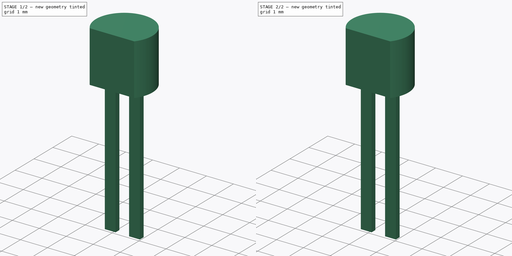
[diagram: build sequence overview — one tinted view per stage of 2, left to right]
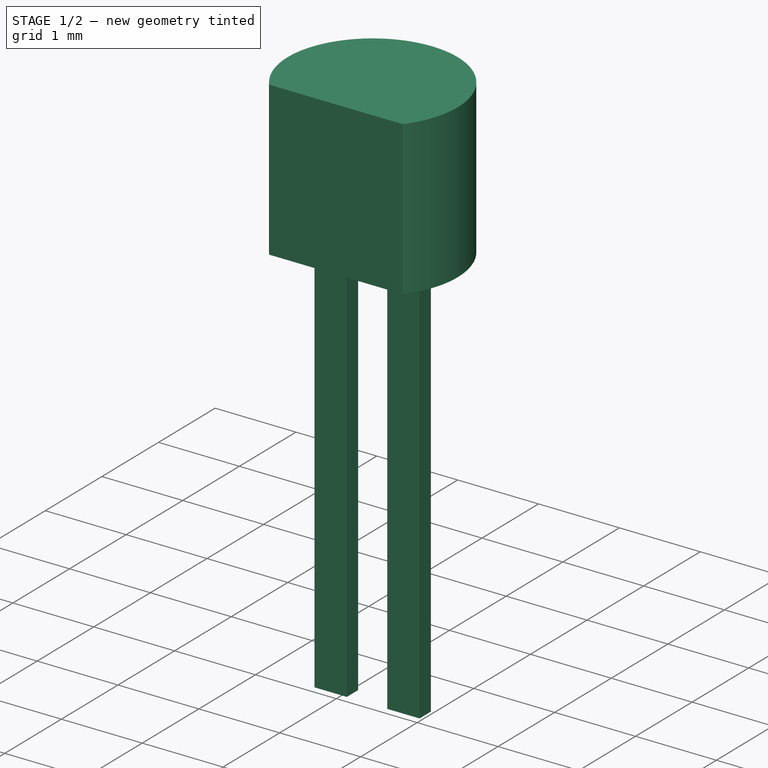
[diagram: stage 1 of 2 — iso view after this stage's code; geometry added in this stage tinted green]
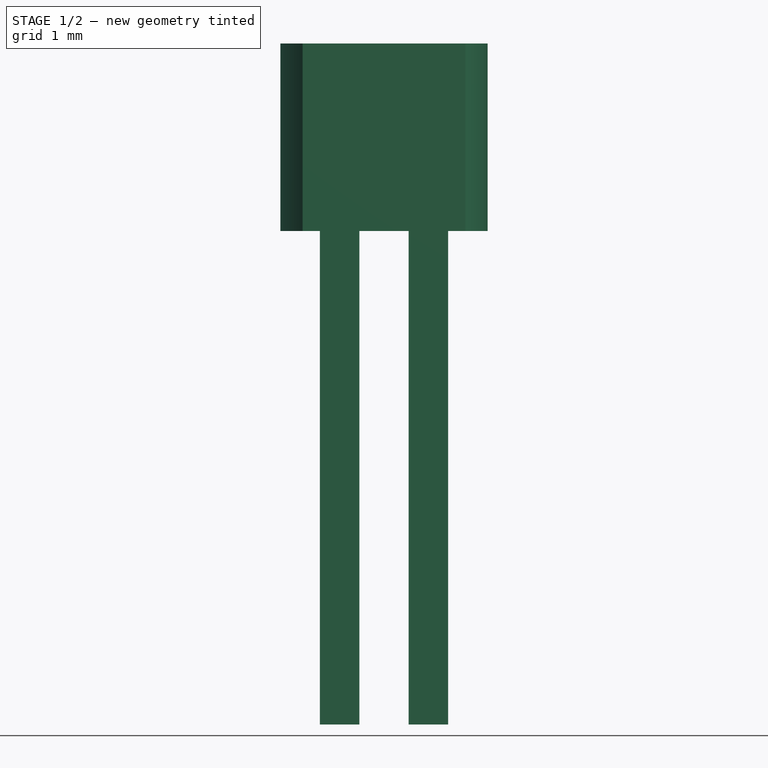
[diagram: stage 1 of 2 — front view after this stage's code; geometry added in this stage tinted green]
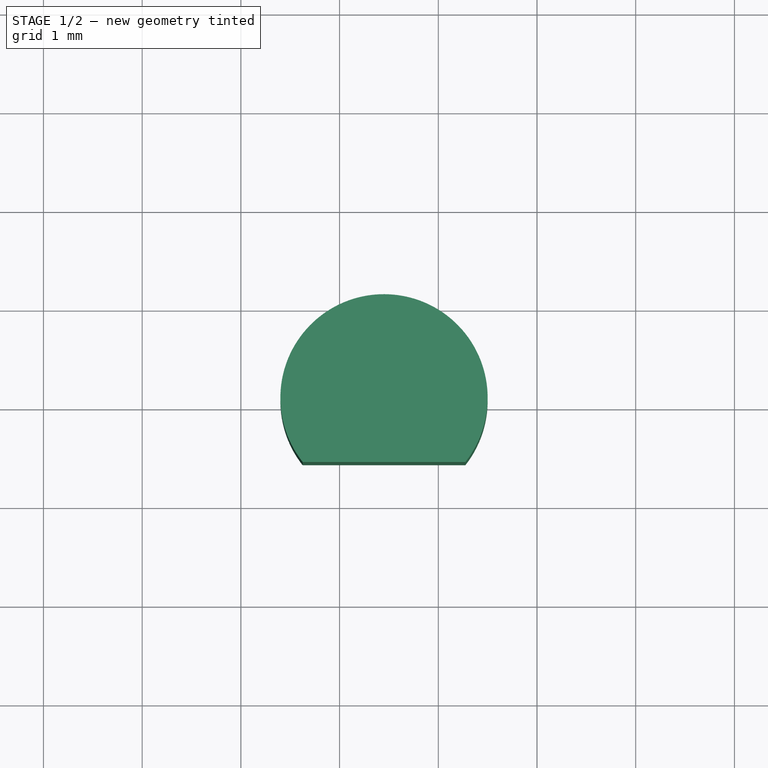
[diagram: stage 1 of 2 — top view after this stage's code; geometry added in this stage tinted green]
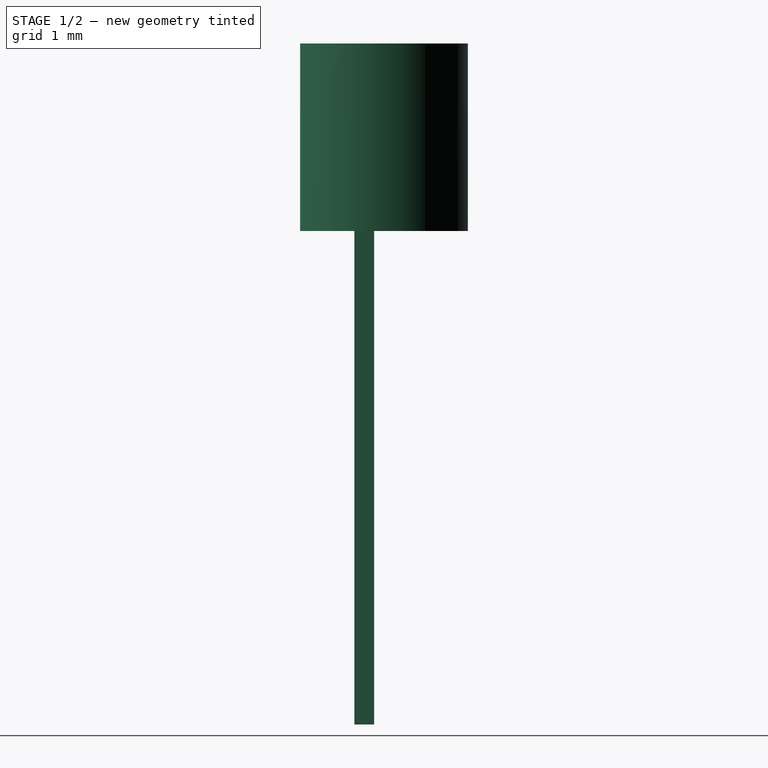
[diagram: stage 1 of 2 — right view after this stage's code; geometry added in this stage tinted green]
FCSTD DOCUMENT  (FreeCAD 0.16R6712 (Git))
Label: TO-92Mini-2
License: All rights reserved
LicenseURL: http://en.wikipedia.org/wiki/All_rights_reserved
objects: Sketcher::SketchObject×2, PartDesign::Pad×2, Part::MultiFuse×1
note: 7 computed .brp shape members not serialized (recipe doc carries the construction recipe); baked Part::Feature solids carry a one-line shape summary decoded from their .brp

FEATURE [Sketcher::SketchObject] Sketch
  Placement = pos=(0,0,2.5) rot=(0,0,1;0rad)
  expr: Constraints[8] = 1.7 - 2.1 / 2
  expr: Constraints[7] = 2.1 / 2
  sketch-geometry (3):
    g0: LineSegment [constr] StartX=0 StartY=0 StartZ=0 EndX=0.45 EndY=0 EndZ=0
    g1: LineSegment StartX=-0.374621 StartY=-0.65 StartZ=0 EndX=1.27462 EndY=-0.65 EndZ=0
    g2: ArcOfCircle CenterX=0.45 CenterY=0 CenterZ=0 NormalX=0 NormalY=0 NormalZ=1 Radius=1.05 StartAngle=5.61566 EndAngle=10.0923
  constraints (9):
    c: Coincident(g0,g-1)
    c: Horizontal(g0)
    c: DistanceX(g0,g0) = 0.45
    c: Horizontal(g1)
    c: Coincident(g2,g0)
    c: Coincident(g2,g1)
    c: Coincident(g2,g1)
    c: Radius(g2) = 1.05
    c: DistanceY(g1,g0) = 0.65
FEATURE [PartDesign::Pad] Pad
  Length = 1.9
  Length2 = 100
  Placement = pos=(0,0,2.5) rot=(0,0,1;0rad)
  Sketch = -> Sketch
  Type = 0
FEATURE [Sketcher::SketchObject] Sketch001
  Placement = pos=(0,0,2.5) rot=(0,0,1;0rad)
  sketch-geometry (9):
    g0: LineSegment StartX=-0.2 StartY=0.1 StartZ=0 EndX=0.2 EndY=0.1 EndZ=0
    g1: LineSegment StartX=0.2 StartY=0.1 StartZ=0 EndX=0.2 EndY=-0.1 EndZ=0
    g2: LineSegment StartX=0.2 StartY=-0.1 StartZ=0 EndX=-0.2 EndY=-0.1 EndZ=0
    g3: LineSegment StartX=-0.2 StartY=-0.1 StartZ=0 EndX=-0.2 EndY=0.1 EndZ=0
    g4: LineSegment [constr] StartX=-0.2 StartY=0 StartZ=0 EndX=0.2 EndY=0 EndZ=0
    g5: LineSegment StartX=0.7 StartY=0.1 StartZ=0 EndX=1.1 EndY=0.1 EndZ=0
    g6: LineSegment StartX=1.1 StartY=0.1 StartZ=0 EndX=1.1 EndY=-0.1 EndZ=0
    g7: LineSegment StartX=1.1 StartY=-0.1 StartZ=0 EndX=0.7 EndY=-0.1 EndZ=0
    g8: LineSegment StartX=0.7 StartY=-0.1 StartZ=0 EndX=0.7 EndY=0.1 EndZ=0
  constraints (28):
    c: Coincident(g0,g1)
    c: Coincident(g1,g2)
    c: Coincident(g2,g3)
    c: Coincident(g3,g0)
    c: Horizontal(g0)
    c: Horizontal(g2)
    c: Vertical(g1)
    c: Vertical(g3)
    c: DistanceX(g0,g0) = 0.4
    c: DistanceY(g1,g1) = 0.2
    c: PointOnObject(g4,g3)
    c: PointOnObject(g4,g1)
    c: Horizontal(g4)
    c: PointOnObject(g-1,g4)
    c: Symmetric(g1,g1,g4)
    c: Symmetric(g4,g4,g-1)
    c: Coincident(g5,g6)
    c: Coincident(g6,g7)
    c: Coincident(g7,g8)
    c: Coincident(g8,g5)
    c: Horizontal(g5)
    c: Horizontal(g7)
    c: Vertical(g6)
    c: Vertical(g8)
    c: Equal(g5,g0)
    c: Equal(g3,g8)
    c: DistanceY(g5,g0) = 0
    c: DistanceX(g0,g5) = 0.9
FEATURE [PartDesign::Pad] Pad001
  Length = 5
  Length2 = 100
  Placement = pos=(0,0,2.5) rot=(0,0,1;0rad)
  Reversed = true
  Sketch = -> Sketch001
  Type = 0
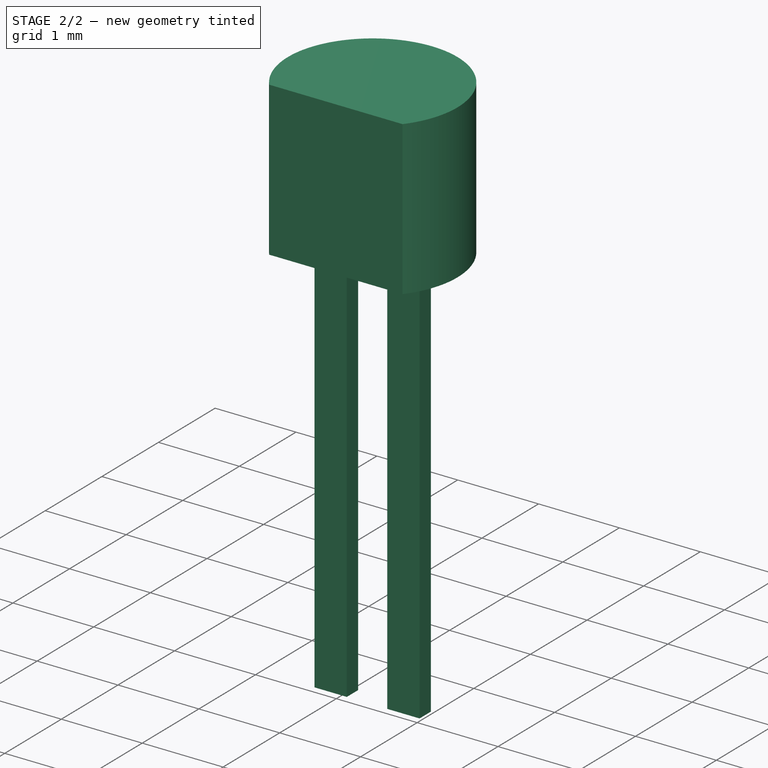
[diagram: stage 2 of 2 — iso view after this stage's code; geometry added in this stage tinted green]
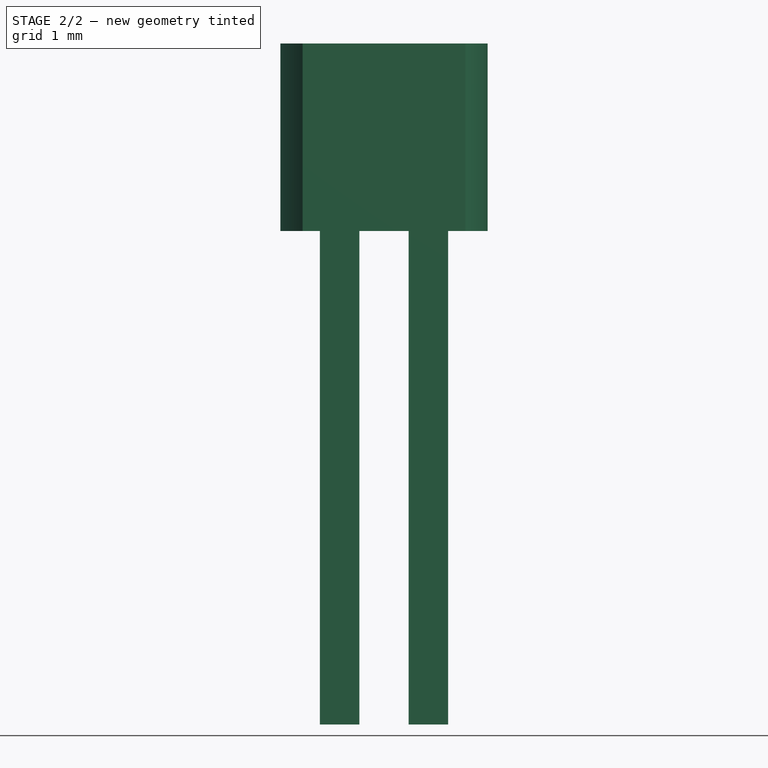
[diagram: stage 2 of 2 — front view after this stage's code; geometry added in this stage tinted green]
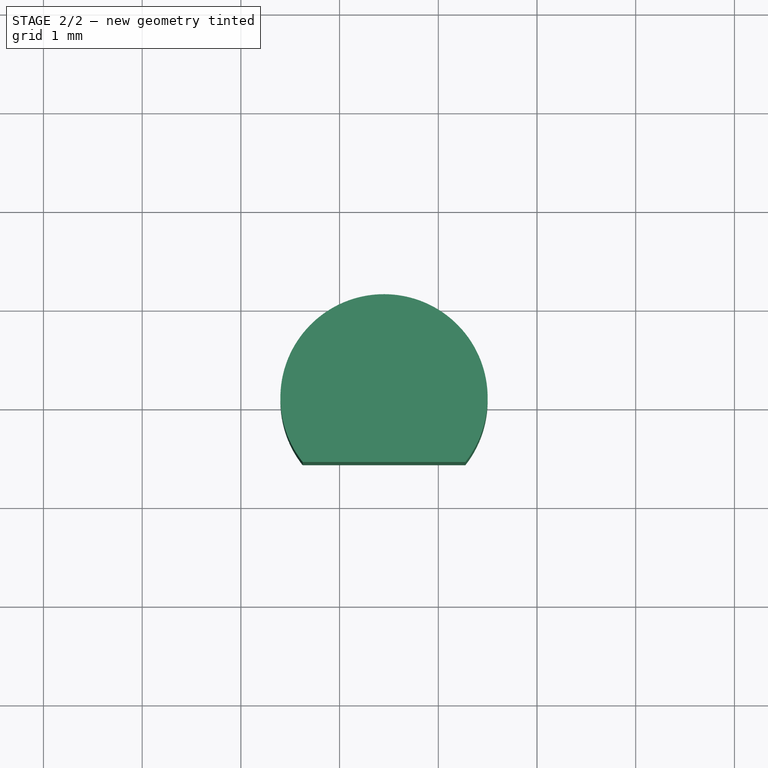
[diagram: stage 2 of 2 — top view after this stage's code; geometry added in this stage tinted green]
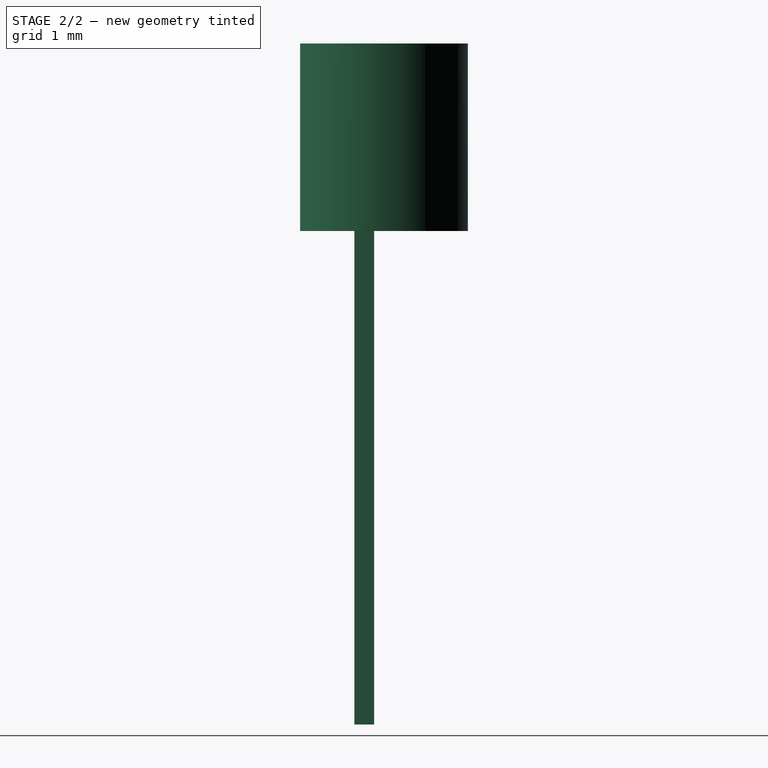
[diagram: stage 2 of 2 — right view after this stage's code; geometry added in this stage tinted green]
FEATURE [Part::MultiFuse] Pad_mp_cp  label="TO-92Mini-2"
  Shapes = -> [Pad,Pad001]
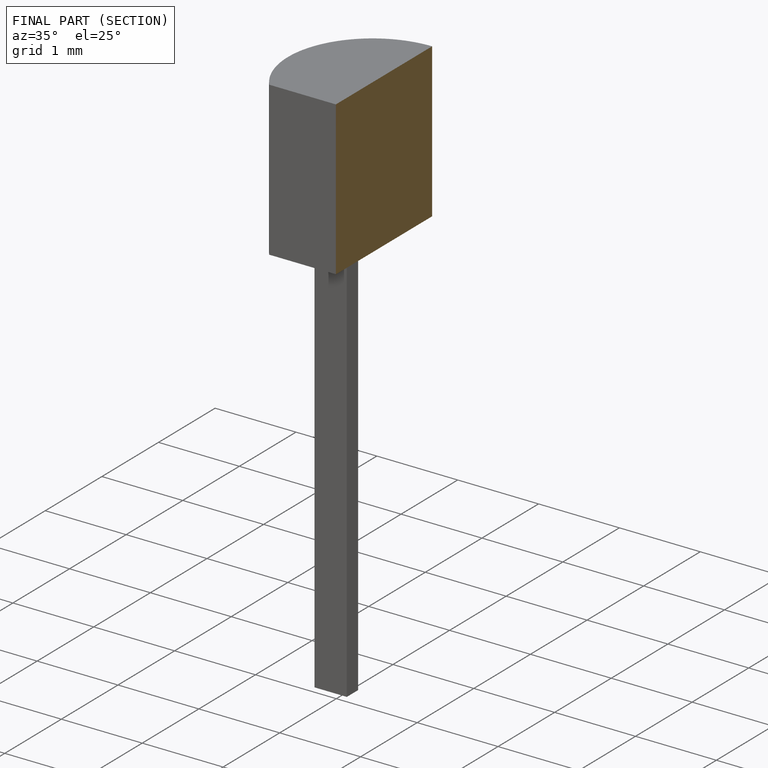
[diagram: finished part — half-section view (interior)]
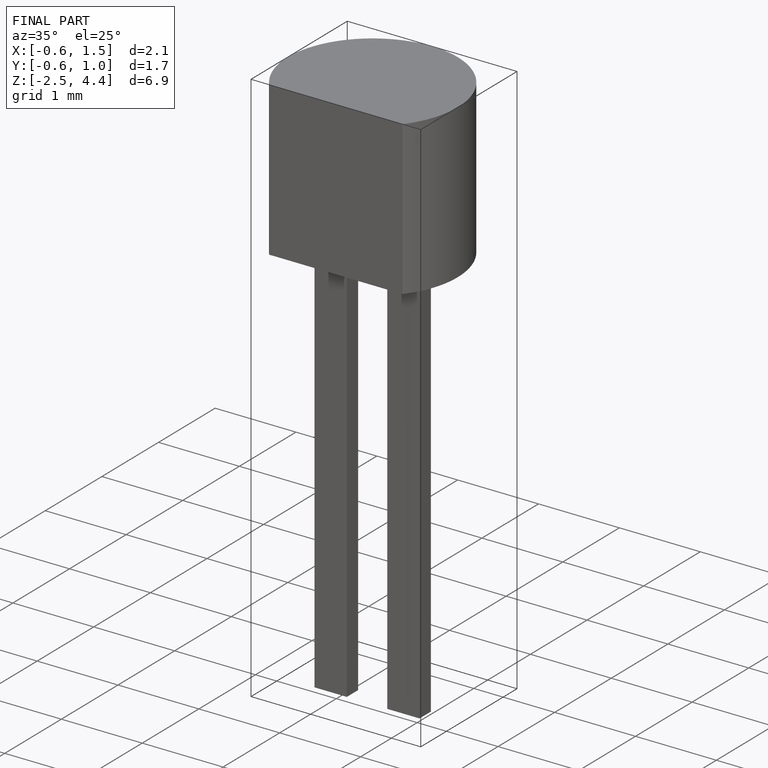
[diagram: finished part — iso view with bounding-box wireframe]
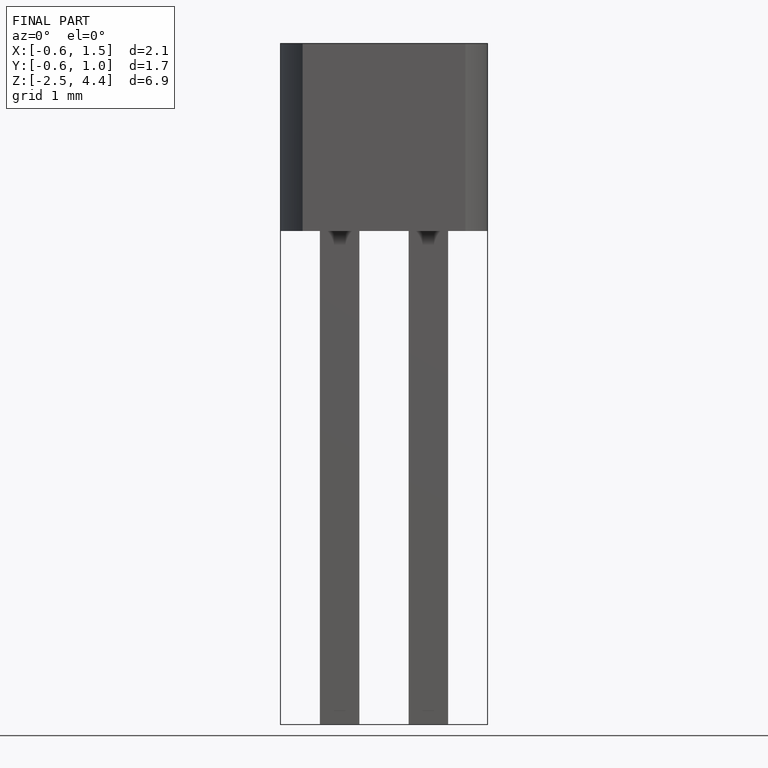
[diagram: finished part — front view with bounding-box wireframe]
